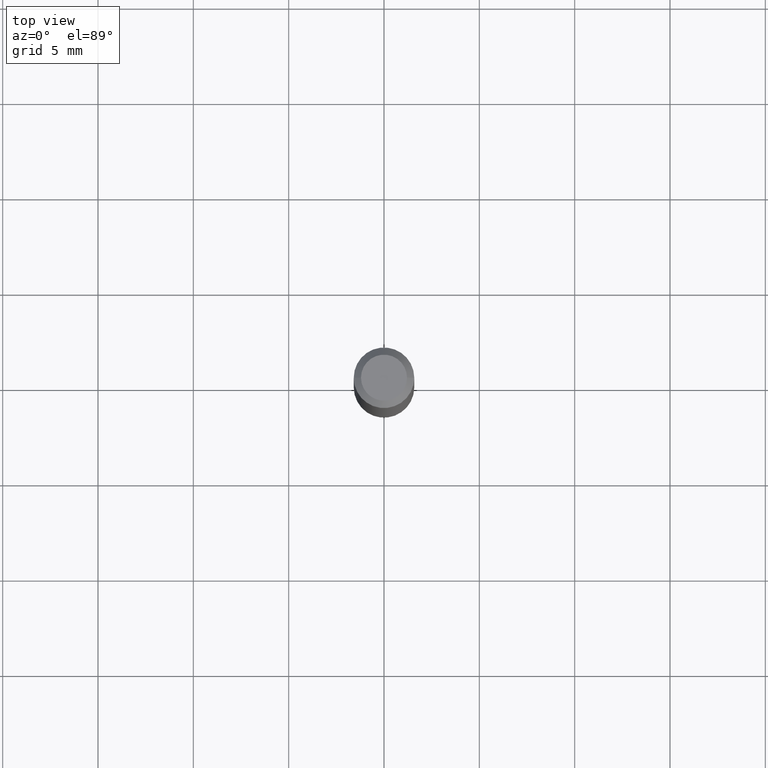
[diagram: clean part render]
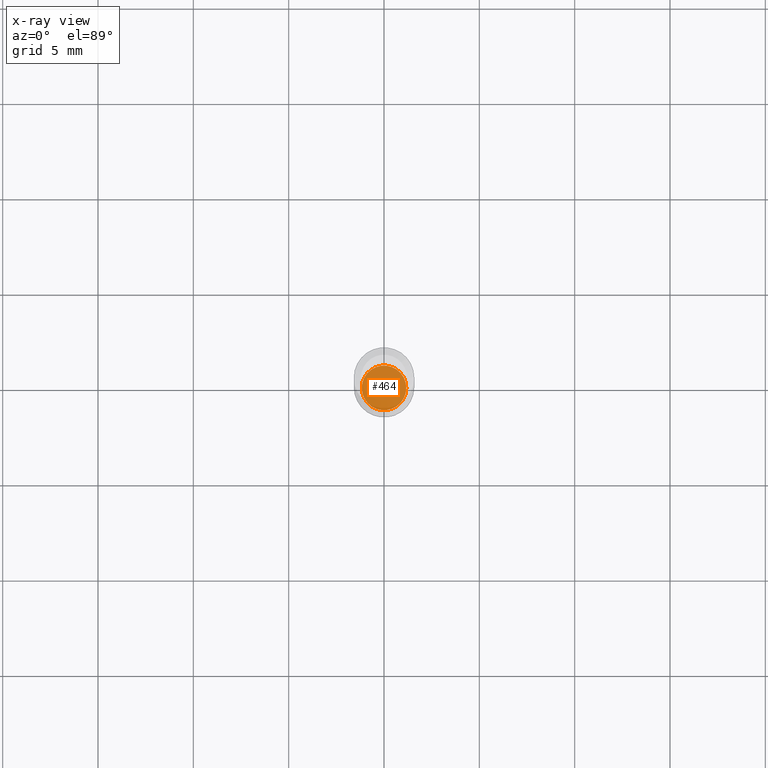
[diagram: x-ray — body ghosted, one internal face saturated and labeled with its STEP entity id]
A machine part, top view, then the same camera in x-ray: the body is ghosted and one INTERNAL B-rep face — a face not visible from any outside direction — is saturated and labeled: STEP entity #464.
In plain terms, the highlighted planar face has unit normal (-0, 0, 1).
Its self-contained STEP definition (entity closure, byte-faithful):
#1 = PLANE ( 'NONE',  #279 ) ;
#35 = CARTESIAN_POINT ( 'NONE',  ( 2.985917412352052273E-29, -4.263098714727481320E-15, -1.221000000000000085 ) ) ;
#41 = CIRCLE ( 'NONE', #440, 0.04599999999999999922 ) ;
#74 = CARTESIAN_POINT ( 'NONE',  ( -0.04599999999999999922, -3.933599829103724532E-15, -1.221000000000000085 ) ) ;
#96 = CARTESIAN_POINT ( 'NONE',  ( 2.985917412352052273E-29, -4.263098714727481320E-15, -1.221000000000000085 ) ) ;
#100 = DIRECTION ( 'NONE',  ( 1.000000000000000000, -6.982962677686269866E-15, 0.000000000000000000 ) ) ;
#120 = ORIENTED_EDGE ( 'NONE', *, *, #356, .F. ) ;
#140 = DIRECTION ( 'NONE',  ( -2.445468806185136597E-29, 3.491481338843145583E-15, 1.000000000000000000 ) ) ;
#177 = FACE_OUTER_BOUND ( 'NONE', #333, .T. ) ;
#210 = CARTESIAN_POINT ( 'NONE',  ( 0.04599999999999999922, -4.584314997901049810E-15, -1.221000000000000085 ) ) ;
#266 = DIRECTION ( 'NONE',  ( 1.000000000000000000, -6.982962677686269866E-15, 0.000000000000000000 ) ) ;
#279 = AXIS2_PLACEMENT_3D ( 'NONE', #329, #294, #465 ) ;
#294 = DIRECTION ( 'NONE',  ( -2.438088387897960049E-29, 3.491481338843145188E-15, 1.000000000000000000 ) ) ;
#300 = AXIS2_PLACEMENT_3D ( 'NONE', #35, #140, #100 ) ;
#309 = ORIENTED_EDGE ( 'NONE', *, *, #383, .F. ) ;
#327 = CIRCLE ( 'NONE', #300, 0.04599999999999999922 ) ;
#329 = CARTESIAN_POINT ( 'NONE',  ( 2.985917412352052273E-29, -4.263098714727481320E-15, -1.221000000000000085 ) ) ;
#333 = EDGE_LOOP ( 'NONE', ( #120, #309 ) ) ;
#356 = EDGE_CURVE ( 'NONE', #372, #386, #327, .T. ) ;
#372 = VERTEX_POINT ( 'NONE', #210 ) ;
#383 = EDGE_CURVE ( 'NONE', #386, #372, #41, .T. ) ;
#386 = VERTEX_POINT ( 'NONE', #74 ) ;
#389 = DIRECTION ( 'NONE',  ( -2.445468806185136597E-29, 3.491481338843145583E-15, 1.000000000000000000 ) ) ;
#440 = AXIS2_PLACEMENT_3D ( 'NONE', #96, #389, #266 ) ;
#464 = ADVANCED_FACE ( 'NONE', ( #177 ), #1, .F. ) ;
#465 = DIRECTION ( 'NONE',  ( 1.000000000000000000, -6.982962677686265922E-15, 4.876176775795935793E-29 ) ) ;